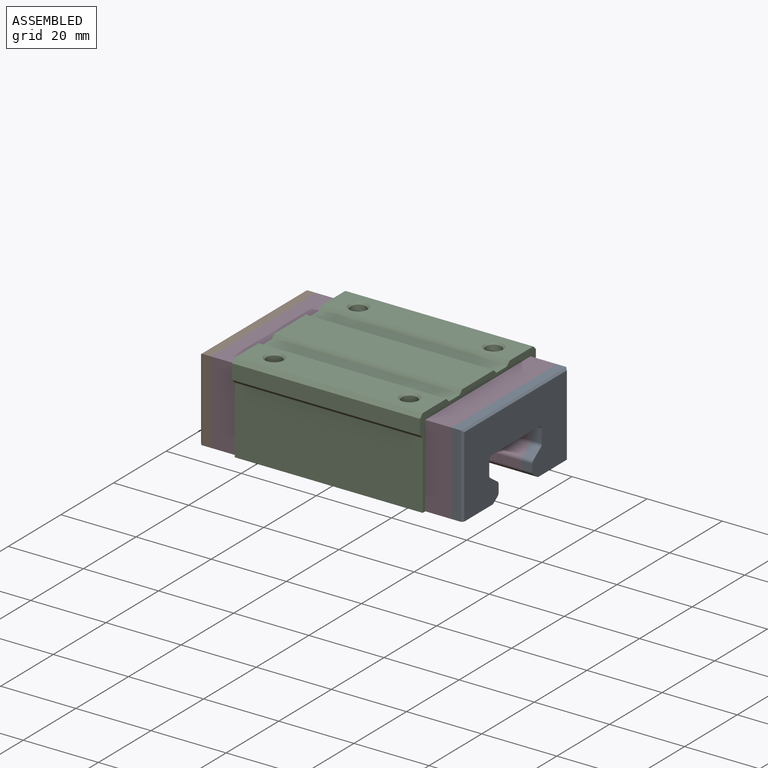
[diagram: assembled view]
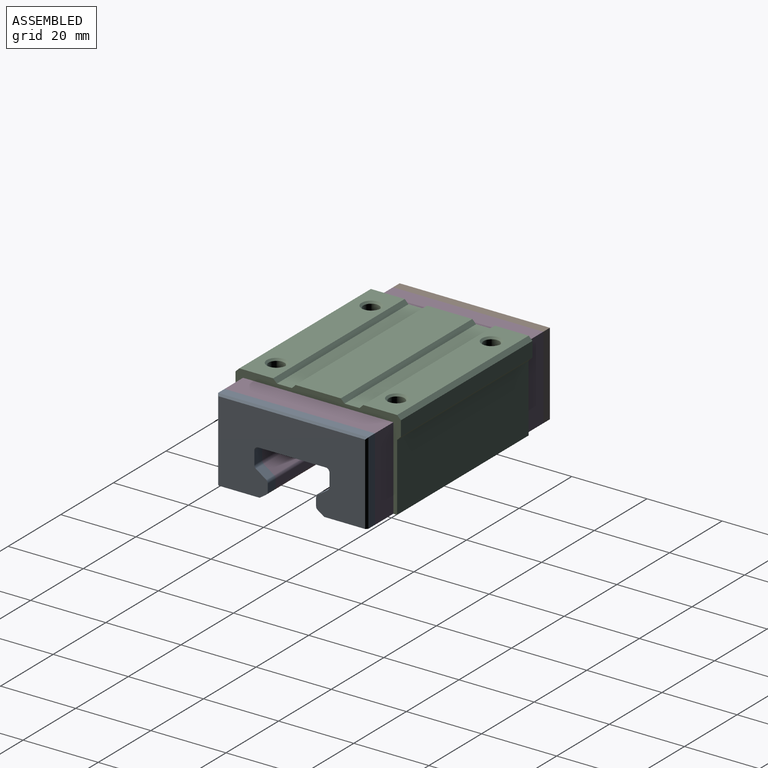
[diagram: assembled view, second angle]
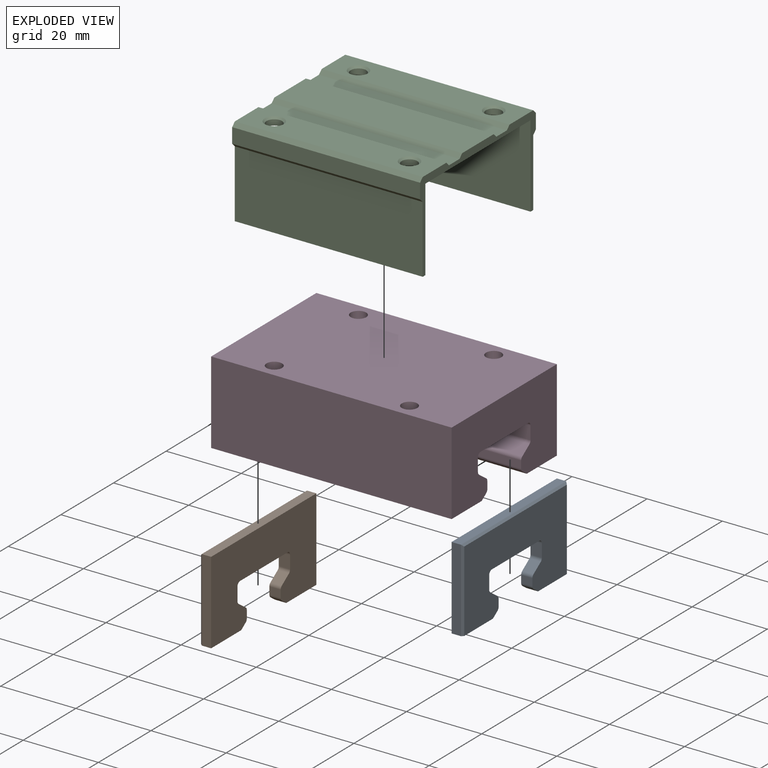
[diagram: exploded view]
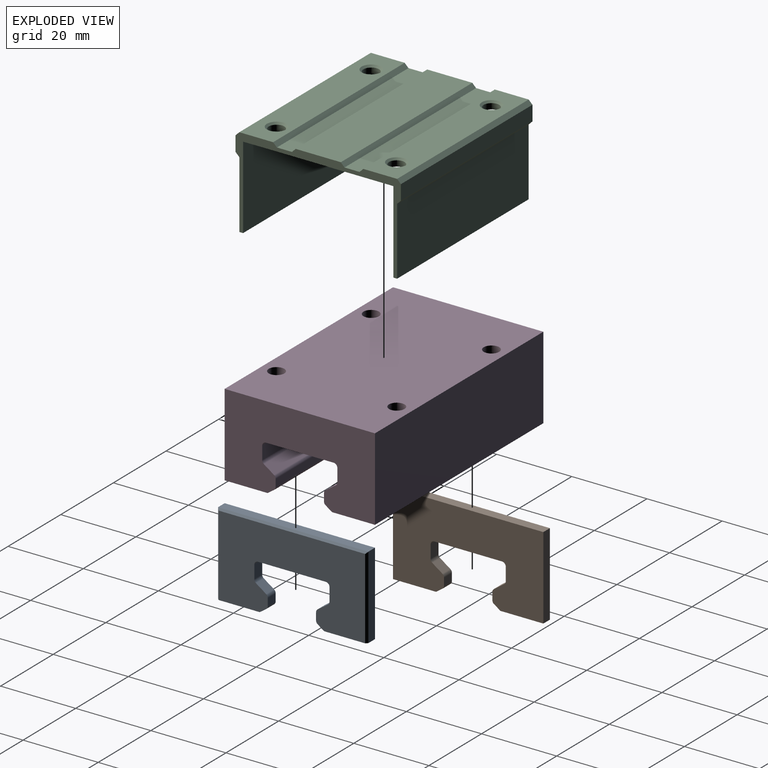
[diagram: exploded view, second angle]
ASSEMBLY  parts=4 mates=3
PART A: 27 faces, bbox 3x40x22 mm
  f0: plane 22x0.5mm, normal (0.71,-0.71,0), area 15.4mm2, adj f1,f2,f20,f21
  f1: plane 22x2.5mm, normal (0,-1,0), area 55mm2, adj f0,f2,f22,f23
  f2: plane 11.43x3mm, normal (0,0,-1), area 34.2mm2, adj f0,f1,f3,f21,f23
  f3: plane 3x1.72mm, normal (0,0.57,-0.82), area 6.3mm2, adj f2,f4,f21,f23
  f4: cylinder r=1mm len=3mm, axis (1,0,0), area 2.9mm2, adj f3,f5,f21,f23
  f5: plane 3x1.96mm, normal (0,1,0), area 5.9mm2, adj f4,f6,f21,f23
  f6: cylinder r=1mm len=3mm, axis (1,0,0), area 2.9mm2, adj f5,f7,f21,f23
  f7: plane 3x2.72mm, normal (0,0.57,0.82), area 10mm2, adj f6,f8,f21,f23
  f8: cylinder r=1mm len=3mm, axis (1,0,0), area 2.9mm2, adj f7,f9,f21,f23
  f9: plane 3.48x3mm, normal (0,1,0), area 10.4mm2, adj f8,f10,f21,f23
  f10: cylinder r=1mm len=3mm, axis (1,0,0), area 4.7mm2, adj f9,f11,f21,f23
  f11: plane 18x3mm, normal (0,0,-1), area 54mm2, adj f10,f12,f21,f23
  f12: cylinder r=1mm len=3mm, axis (1,0,0), area 4.7mm2, adj f11,f13,f21,f23
  f13: plane 3.48x3mm, normal (0,-1,0), area 10.4mm2, adj f12,f14,f21,f23
  f14: cylinder r=1mm len=3mm, axis (1,0,0), area 2.9mm2, adj f13,f15,f21,f23
  f15: plane 3x2.72mm, normal (0,-0.57,0.82), area 10mm2, adj f14,f16,f21,f23
  f16: cylinder r=1mm len=3mm, axis (1,0,0), area 2.9mm2, adj f15,f17,f21,f23
  f17: plane 3x1.96mm, normal (0,-1,0), area 5.9mm2, adj f16,f18,f21,f23
  f18: cylinder r=1mm len=3mm, axis (1,0,0), area 2.9mm2, adj f17,f19,f21,f23
  f19: plane 3x1.72mm, normal (0,-0.57,-0.82), area 6.3mm2, adj f18,f21,f23,f24
  f20: plane 40x0.5mm, normal (0.71,0,0.71), area 27.9mm2, adj f0,f21,f22,f25
  f21: plane 39x21.5mm, normal (1,0,0), area 636.7mm2, adj f0,f2,f3,f4,f5,f6,f7,f8
  f22: plane 40x2.5mm, normal (0,0,1), area 100mm2, adj f1,f20,f23,f26
  f23: plane 40x22mm, normal (-1,0,0), area 678.2mm2, adj f1,f2,f3,f4,f5,f6,f7,f8
  f24: plane 11.43x3mm, normal (0,0,-1), area 34.2mm2, adj f19,f21,f23,f25,f26
  f25: plane 22x0.5mm, normal (0.71,0.71,0), area 15.4mm2, adj f20,f21,f24,f26
  f26: plane 22x2.5mm, normal (0,1,0), area 55mm2, adj f22,f23,f24,f25
PART B: 27 faces, bbox 3x40x22 mm
  f0: plane 22x0.5mm, normal (-0.71,-0.71,0), area 15.4mm2, adj f1,f19,f20,f21
  f1: plane 11.43x3mm, normal (0,0,-1), area 34.2mm2, adj f0,f2,f19,f21,f23
  f2: plane 3x1.72mm, normal (0,0.57,-0.82), area 6.3mm2, adj f1,f3,f21,f23
  f3: cylinder r=1mm len=3mm, axis (1,0,0), area 2.9mm2, adj f2,f4,f21,f23
  f4: plane 3x1.96mm, normal (0,1,0), area 5.9mm2, adj f3,f5,f21,f23
  f5: cylinder r=1mm len=3mm, axis (1,0,0), area 2.9mm2, adj f4,f6,f21,f23
  f6: plane 3x2.72mm, normal (0,0.57,0.82), area 10mm2, adj f5,f7,f21,f23
  f7: cylinder r=1mm len=3mm, axis (1,0,0), area 2.9mm2, adj f6,f8,f21,f23
  f8: plane 3.48x3mm, normal (0,1,0), area 10.4mm2, adj f7,f9,f21,f23
  f9: cylinder r=1mm len=3mm, axis (1,0,0), area 4.7mm2, adj f8,f10,f21,f23
  f10: plane 18x3mm, normal (0,0,-1), area 54mm2, adj f9,f11,f21,f23
  f11: cylinder r=1mm len=3mm, axis (1,0,0), area 4.7mm2, adj f10,f12,f21,f23
  f12: plane 3.48x3mm, normal (0,-1,0), area 10.4mm2, adj f11,f13,f21,f23
  f13: cylinder r=1mm len=3mm, axis (1,0,0), area 2.9mm2, adj f12,f14,f21,f23
  f14: plane 3x2.72mm, normal (0,-0.57,0.82), area 10mm2, adj f13,f15,f21,f23
  f15: cylinder r=1mm len=3mm, axis (1,0,0), area 2.9mm2, adj f14,f16,f21,f23
  f16: plane 3x1.96mm, normal (0,-1,0), area 5.9mm2, adj f15,f17,f21,f23
  f17: cylinder r=1mm len=3mm, axis (1,0,0), area 2.9mm2, adj f16,f18,f21,f23
  f18: plane 3x1.72mm, normal (0,-0.57,-0.82), area 6.3mm2, adj f17,f21,f22,f23
  f19: plane 22x2.5mm, normal (0,-1,0), area 55mm2, adj f0,f1,f23,f24
  f20: plane 40x0.5mm, normal (-0.71,0,0.71), area 27.9mm2, adj f0,f21,f24,f25
  f21: plane 39x21.5mm, normal (-1,0,0), area 636.7mm2, adj f0,f1,f2,f3,f4,f5,f6,f7
  f22: plane 11.43x3mm, normal (0,0,-1), area 34.2mm2, adj f18,f21,f23,f25,f26
  f23: plane 40x22mm, normal (1,0,0), area 678.2mm2, adj f1,f2,f3,f4,f5,f6,f7,f8
  f24: plane 40x2.5mm, normal (0,0,1), area 100mm2, adj f19,f20,f23,f26
  f25: plane 22x0.5mm, normal (-0.71,0.71,0), area 15.4mm2, adj f20,f21,f22,f26
  f26: plane 22x2.5mm, normal (0,1,0), area 55mm2, adj f22,f23,f24,f25
PART C: 32 faces, bbox 50x44x24 mm
  f0: cone r=2.07mm half-angle=45deg, axis (0,0,1), area 10.3mm2, adj f7,f11
  f1: cone r=2.07mm half-angle=45deg, axis (0,0,1), area 10.3mm2, adj f4,f11
  f2: cone r=2.07mm half-angle=45deg, axis (0,0,1), area 10.3mm2, adj f6,f19
  f3: cone r=2.07mm half-angle=45deg, axis (0,0,1), area 10.3mm2, adj f5,f19
  f4: cylinder r=2.07mm len=4.13mm, axis (0,0,-1), area 19.5mm2, adj f1,f27
  f5: cylinder r=2.07mm len=4.13mm, axis (0,0,-1), area 19.5mm2, adj f3,f27
  f6: cylinder r=2.07mm len=4.13mm, axis (0,0,-1), area 19.5mm2, adj f2,f27
  f7: cylinder r=2.07mm len=4.13mm, axis (0,0,-1), area 19.5mm2, adj f0,f27
  f8: plane 50x1mm, normal (0,-0.71,-0.71), area 70.7mm2, adj f9,f26,f28,f30
  f9: plane 50x4mm, normal (0,-1,0), area 200mm2, adj f8,f10,f28,f30
  f10: plane 50x1mm, normal (0,-0.71,0.71), area 70.7mm2, adj f9,f11,f28,f30
  f11: plane 50x9mm, normal (0,0,1), area 408.6mm2, adj f0,f1,f10,f12,f28,f30
  f12: plane 50x1mm, normal (0,0.71,0.71), area 70.7mm2, adj f11,f13,f28,f30
  f13: plane 50x4mm, normal (0,0,1), area 200mm2, adj f12,f14,f28,f30
  f14: plane 50x1mm, normal (0,-0.71,0.71), area 70.7mm2, adj f13,f15,f28,f30
  f15: plane 50x12mm, normal (0,0,1), area 600mm2, adj f14,f16,f28,f30
  f16: plane 50x1mm, normal (0,0.71,0.71), area 70.7mm2, adj f15,f17,f28,f30
  f17: plane 50x4mm, normal (0,0,1), area 200mm2, adj f16,f18,f28,f30
  f18: plane 50x1mm, normal (0,-0.71,0.71), area 70.7mm2, adj f17,f19,f28,f30
  f19: plane 50x9mm, normal (0,0,1), area 408.6mm2, adj f2,f3,f18,f20,f28,f30
  f20: plane 50x1mm, normal (0,0.71,0.71), area 70.7mm2, adj f19,f21,f28,f30
  f21: plane 50x4mm, normal (0,1,0), area 200mm2, adj f20,f22,f28,f30
  f22: plane 50x1mm, normal (0,0.71,-0.71), area 70.7mm2, adj f21,f23,f28,f30
  f23: plane 50x18mm, normal (0,1,0), area 900mm2, adj f22,f28,f29,f30
  f24: plane 50x22mm, normal (0,1,0), area 1100mm2, adj f25,f27,f28,f30
  f25: plane 50x1mm, normal (0,0,-1), area 50mm2, adj f24,f26,f28,f30
  f26: plane 50x18mm, normal (0,-1,0), area 900mm2, adj f8,f25,f28,f30
  f27: plane 50x40mm, normal (0,0,-1), area 1946.3mm2, adj f4,f5,f6,f7,f24,f28,f30,f31
  f28: plane 44x24mm, normal (1,0,0), area 128mm2, adj f8,f9,f10,f11,f12,f13,f14,f15
  f29: plane 50x1mm, normal (0,0,-1), area 50mm2, adj f23,f28,f30,f31
  f30: plane 44x24mm, normal (-1,0,0), area 128mm2, adj f8,f9,f10,f11,f12,f13,f14,f15
  f31: plane 50x22mm, normal (0,-1,0), area 1100mm2, adj f27,f28,f29,f30
PART D: 32 faces, bbox 64x40x22 mm
  f0: plane 64x11.43mm, normal (0,0,-1), area 731.6mm2, adj f18,f22,f23,f25
  f1: plane 64x11.43mm, normal (0,0,-1), area 731.6mm2, adj f2,f23,f24,f25
  f2: plane 64x1.72mm, normal (0,0.57,-0.82), area 134.1mm2, adj f1,f3,f23,f25
  f3: cylinder r=1mm len=64mm, axis (1,0,0), area 61.4mm2, adj f2,f4,f23,f25
  f4: plane 64x1.96mm, normal (0,1,0), area 125.4mm2, adj f3,f5,f23,f25
  f5: cylinder r=1mm len=64mm, axis (1,0,0), area 61.4mm2, adj f4,f6,f23,f25
  f6: plane 64x2.72mm, normal (0,0.57,0.82), area 212.6mm2, adj f5,f7,f23,f25
  f7: cylinder r=1mm len=64mm, axis (1,0,0), area 61.4mm2, adj f6,f8,f23,f25
  f8: plane 64x3.48mm, normal (0,1,0), area 222.6mm2, adj f7,f9,f23,f25
  f9: cylinder r=1mm len=64mm, axis (1,0,0), area 100.5mm2, adj f8,f10,f23,f25
  f10: plane 64x18mm, normal (0,0,-1), area 1152mm2, adj f9,f11,f23,f25
  f11: cylinder r=1mm len=64mm, axis (1,0,0), area 100.5mm2, adj f10,f12,f23,f25
  f12: plane 64x3.48mm, normal (0,-1,0), area 222.6mm2, adj f11,f13,f23,f25
  f13: cylinder r=1mm len=64mm, axis (1,0,0), area 61.4mm2, adj f12,f14,f23,f25
  f14: plane 64x2.72mm, normal (0,-0.57,0.82), area 212.6mm2, adj f13,f15,f23,f25
  f15: cylinder r=1mm len=64mm, axis (1,0,0), area 61.4mm2, adj f14,f16,f23,f25
  f16: plane 64x1.96mm, normal (0,-1,0), area 125.4mm2, adj f15,f17,f23,f25
  f17: cylinder r=1mm len=64mm, axis (1,0,0), area 61.4mm2, adj f16,f18,f23,f25
  f18: plane 64x1.72mm, normal (0,-0.57,-0.82), area 134.1mm2, adj f0,f17,f23,f25
  f19: plane 4.21x4.21mm, normal (0,0,1), area 13.4mm2, adj f26
  f20: plane 4.21x4.21mm, normal (0,0,1), area 13.4mm2, adj f27
  f21: plane 4.21x4.21mm, normal (0,0,1), area 13.4mm2, adj f28
  f22: plane 64x22mm, normal (0,1,0), area 1408mm2, adj f0,f23,f25,f29
  f23: plane 40x22mm, normal (1,0,0), area 678.2mm2, adj f0,f1,f2,f3,f4,f5,f6,f7
  f24: plane 64x22mm, normal (0,-1,0), area 1408mm2, adj f1,f23,f25,f29
  f25: plane 40x22mm, normal (-1,0,0), area 678.2mm2, adj f0,f1,f2,f3,f4,f5,f6,f7
  f26: cylinder r=2.07mm len=8mm, axis (0,0,-1), area 103.9mm2, adj f19,f29
  f27: cylinder r=2.07mm len=8mm, axis (0,0,-1), area 103.9mm2, adj f20,f29
  f28: cylinder r=2.07mm len=8mm, axis (0,0,-1), area 103.9mm2, adj f21,f29
  f29: plane 64x40mm, normal (0,0,1), area 2506.3mm2, adj f22,f23,f24,f25,f26,f27,f28,f30
  f30: cylinder r=2.07mm len=8mm, axis (0,0,-1), area 103.9mm2, adj f29,f31
  f31: plane 4.21x4.21mm, normal (0,0,1), area 13.4mm2, adj f30
PLACE A t=(-0.02,0.04,-10.93)mm
PLACE B t=(-0.02,0.04,-10.93)mm
PLACE C t=(-0.02,0.04,-10.93)mm
PLACE D t=(-0.02,0.04,-10.93)mm fixed
MATE fastened D.f29 <-> B.f24  axis (0,0,1) through (-32.02,-19.96,11.07)mm
MATE fastened D.f29 <-> A.f22  axis (0,0,1) through (31.98,-19.96,11.07)mm
MATE fastened C.f27 <-> D.f29  axis (0,0,1) through (-19.84,-14.97,11.07)mm
